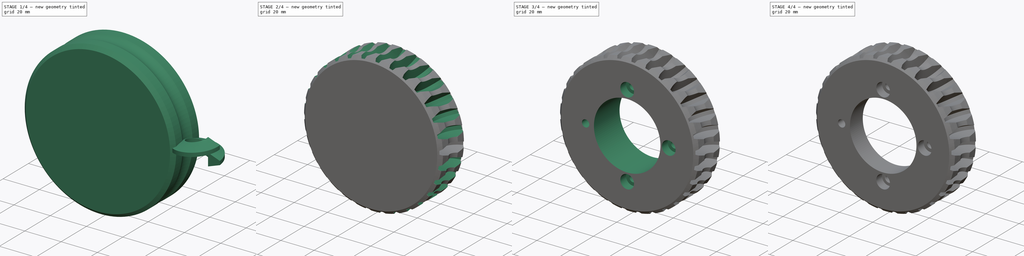
[diagram: build sequence overview — one tinted view per stage of 4, left to right]
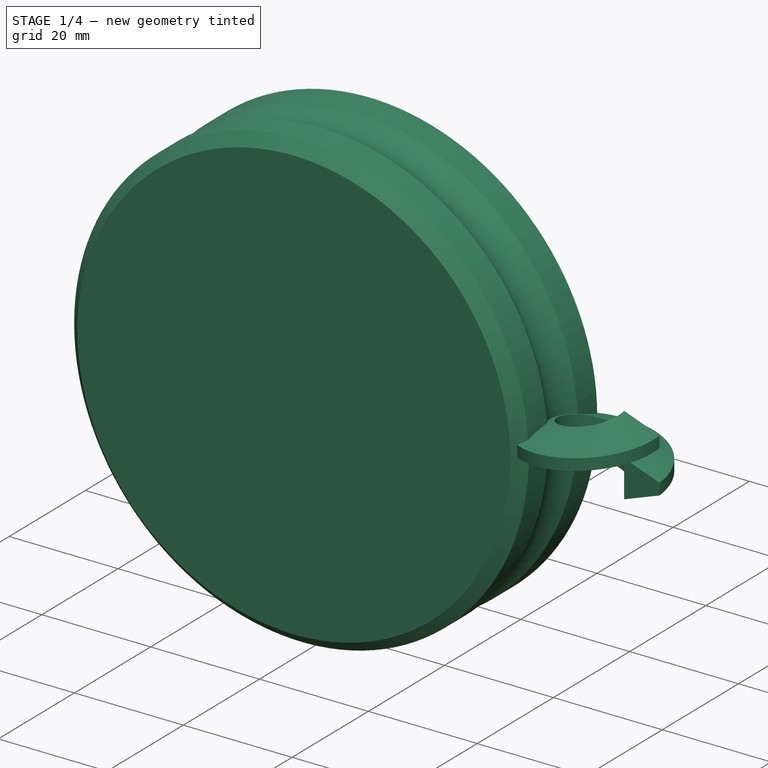
[diagram: stage 1 of 4 — iso view after this stage's code; geometry added in this stage tinted green]
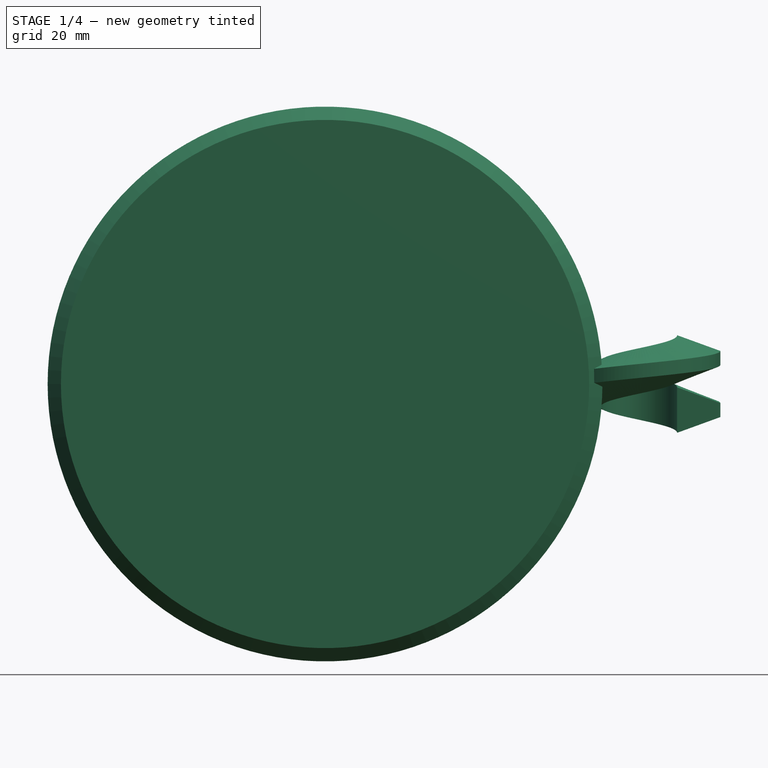
[diagram: stage 1 of 4 — front view after this stage's code; geometry added in this stage tinted green]
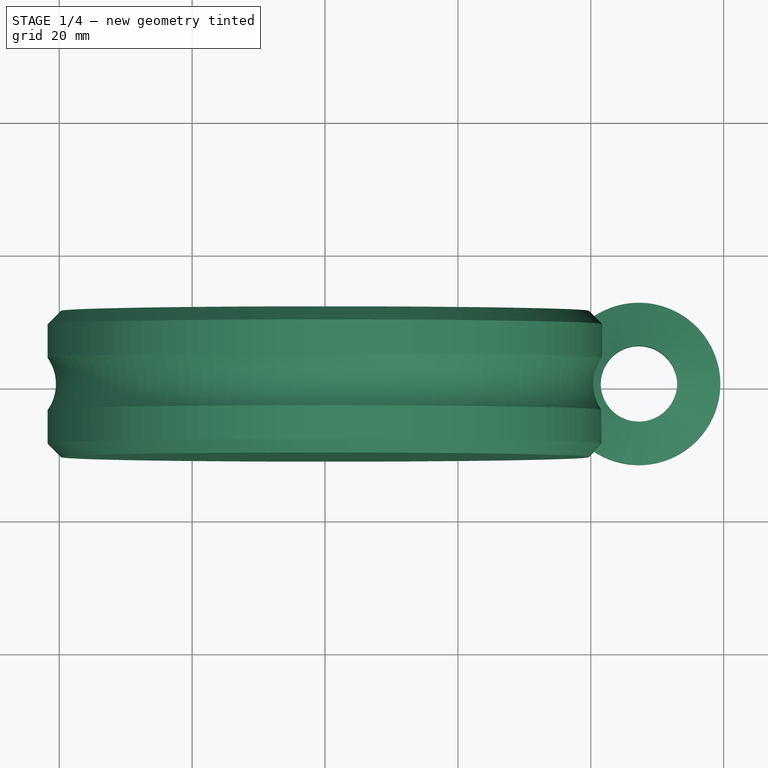
[diagram: stage 1 of 4 — top view after this stage's code; geometry added in this stage tinted green]
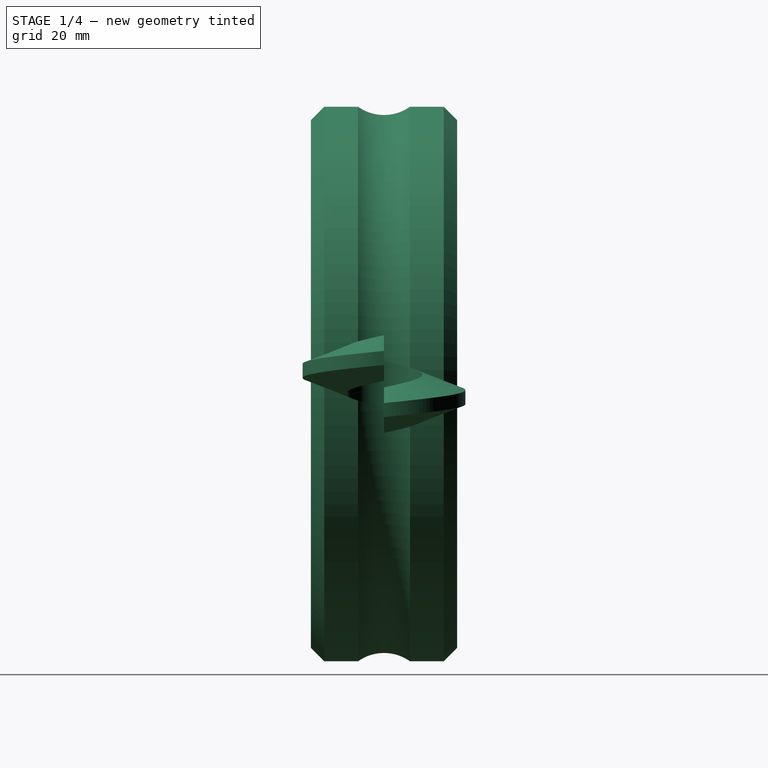
[diagram: stage 1 of 4 — right view after this stage's code; geometry added in this stage tinted green]
FCSTD DOCUMENT  (FreeCAD 0.17R5235 (Git shallow))
Label: C1020-1_shaft_gear
License: CC-BY 3.0
LicenseURL: http://creativecommons.org/licenses/by/3.0/
objects: Sketcher::SketchObject×7, PartDesign::Pocket×4, PartDesign::Chamfer×2, PartDesign::Body×2, PartDesign::Revolution×1, Part::Helix×1, Part::Sweep×1, Part::FeaturePython×1, Part::Cut×1, PartDesign::FeatureBase×1, PartDesign::Fillet×1, App::Part×1
note: 27 computed .brp shape members not serialized (recipe doc carries the construction recipe); baked Part::Feature solids carry a one-line shape summary decoded from their .brp

FEATURE [Sketcher::SketchObject] Sketch  label="coronaProfile"
  MapMode = 5
  Support = -> [XY_Plane001]
  sketch-geometry (6):
    g0: LineSegment StartX=0 StartY=-11 StartZ=0 EndX=41.75 EndY=-11 EndZ=0
    g1: LineSegment StartX=41.75 StartY=11 StartZ=0 EndX=0 EndY=11 EndZ=0
    g2: LineSegment StartX=0 StartY=11 StartZ=0 EndX=0 EndY=-11 EndZ=0
    g3: ArcOfCircle CenterX=47.25 CenterY=0 CenterZ=0 NormalX=0 NormalY=0 NormalZ=1 AngleXU=0 Radius=6.75 StartAngle=2.52321 EndAngle=3.75998
    g4: LineSegment StartX=41.75 StartY=11 StartZ=0 EndX=41.75 EndY=3.91312 EndZ=0
    g5: LineSegment StartX=41.75 StartY=-3.91312 StartZ=0 EndX=41.75 EndY=-11 EndZ=0
  constraints (18):
    c: Horizontal(g0)
    c: Horizontal(g1)
    c: Coincident(g2,g0)
    c: Vertical(g2)
    c: Symmetric(g1,g0,g-1)
    c: PointOnObject(g3,g-1)
    c: Coincident(g4,g1)
    c: Coincident(g4,g3)
    c: Vertical(g4)
    c: Coincident(g5,g3)
    c: Coincident(g5,g0)
    c: Vertical(g5)
    c: DistanceX(g-1,g3) = 47.25
    c: DistanceY(g1,g0) = -22
    c: DistanceX(g-1,g0) = 41.75
    c: Radius(g3) = 6.75
    c: PointOnObject(g2,g-2)
    c: Coincident(g2,g1)
FEATURE [PartDesign::Revolution] Revolution  label="CoronaBody"
  Angle = 360
  Axis = (0,1,0)
  Base = (0,0,0)
  Profile = -> Sketch
  ReferenceAxis = -> Sketch [V_Axis]
  Reversed = true
FEATURE [Part::Helix] Helix  label="coronaCircle"
  Angle = 0
  AttacherType = Attacher::AttachEngine3D
  Height = 7.85
  LocalCoord = 0
  Pitch = 7.85
  Placement = pos=(47.25,0,-3.925) rot=(0,0,1;0rad)
  Radius = 9.75
  Style = 1
FEATURE [Sketcher::SketchObject] Sketch002  label="helpCircle"
  MapMode = 5
  sketch-geometry (1):
    g0: Circle CenterX=47.25 CenterY=0 CenterZ=0 NormalX=0 NormalY=0 NormalZ=1 AngleXU=0 Radius=12.25
  constraints (3):
    c: PointOnObject(g0,g-1)
    c: Radius(g0) = 12.25
    c: DistanceX(g-1,g0) = 47.25
FEATURE [Sketcher::SketchObject] Sketch003  label="coronaCutter"
  MapMode = 5
  Placement = pos=(0,0,0) rot=(1,0,0;1.5708rad)
  sketch-geometry (6):
    g0: LineSegment StartX=53 StartY=-7.34338 StartZ=0 EndX=53 EndY=-0.506619 EndZ=0
    g1: LineSegment StartX=53 StartY=-0.506619 StartZ=0 EndX=59.5 EndY=-2.87243 EndZ=0
    g2: LineSegment StartX=59.5 StartY=-2.87243 StartZ=0 EndX=59.5 EndY=-4.97757 EndZ=0
    g3: LineSegment StartX=59.5 StartY=-4.97757 StartZ=0 EndX=53 EndY=-7.34338 EndZ=0
    g4: LineSegment [constr] StartX=53 StartY=-3.925 StartZ=0 EndX=59.5 EndY=-3.925 EndZ=0
    g5: LineSegment [constr] StartX=57 StartY=-1.9625 StartZ=0 EndX=57 EndY=-5.8875 EndZ=0
  constraints (19):
    c: Vertical(g0)
    c: Coincident(g0,g1)
    c: Coincident(g1,g2)
    c: Vertical(g2)
    c: Coincident(g2,g3)
    c: Coincident(g0,g3)
    c: PointOnObject(g4,g0)
    c: PointOnObject(g4,g2)
    c: Symmetric(g0,g0,g4)
    c: Symmetric(g1,g2,g4)
    c: Vertical(g5)
    c: PointOnObject(g5,g3)
    c: PointOnObject(g5,g1)
    c: DistanceX(g-1,g5) = 57
    c: DistanceY(g-1,g4) = -3.925
    c: Angle(g-1,g1) = 2.79253
    c: DistanceY(g5) = -3.925
    c: DistanceX(g5,g1) = 2.5
    c: DistanceX(g0,g5) = 4
FEATURE [Part::Sweep] Sweep  label="cutterSweep"
  Frenet = true
  Sections = -> [Sketch003]
  Solid = true
  Spine = -> Helix [Edge1]
  Transition = 1
FEATURE [PartDesign::Chamfer] Chamfer
  Base = -> Revolution [Edge1,Edge2]
  BaseFeature = -> Revolution
  Size = 2
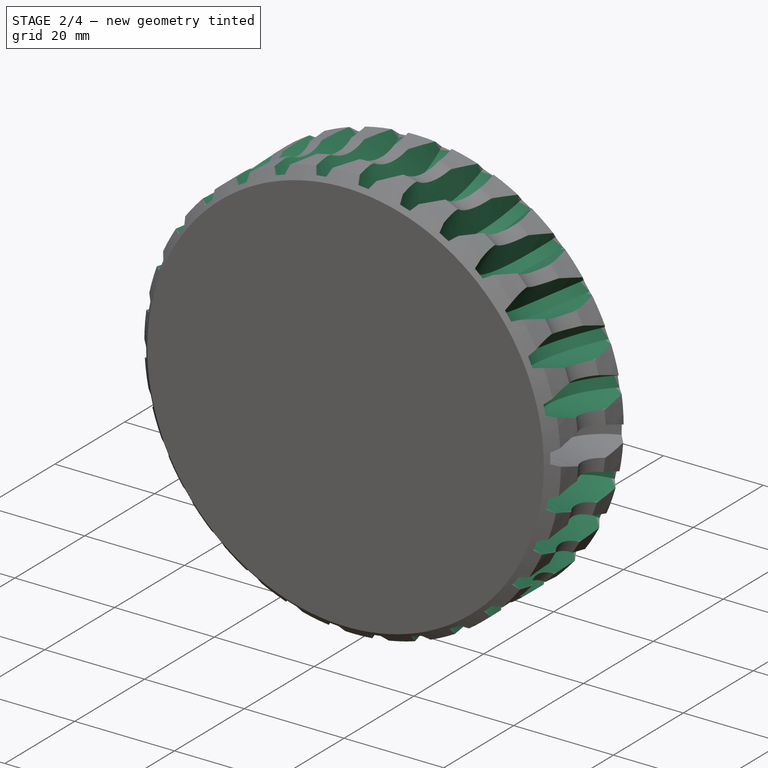
[diagram: stage 2 of 4 — iso view after this stage's code; geometry added in this stage tinted green]
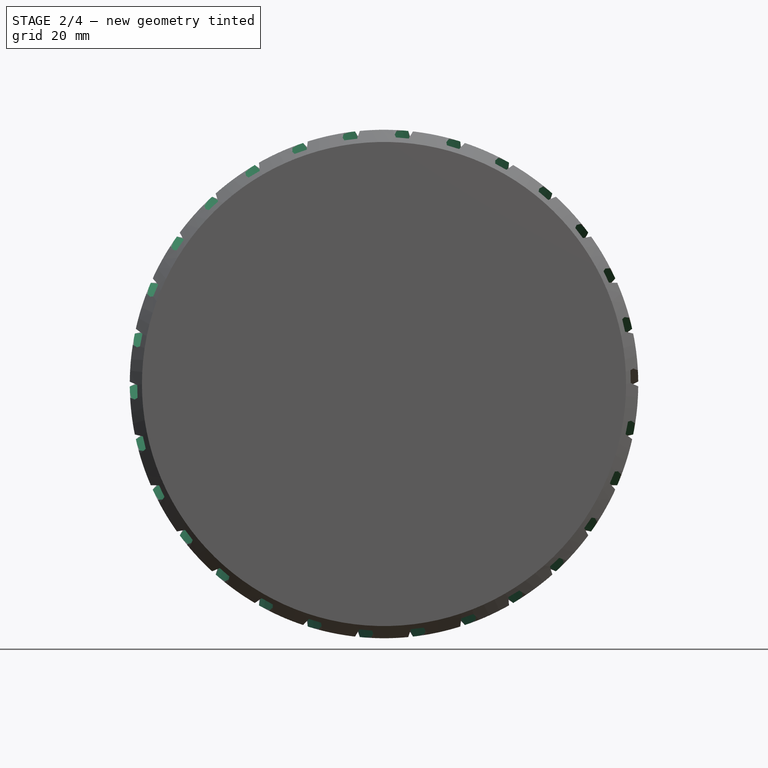
[diagram: stage 2 of 4 — front view after this stage's code; geometry added in this stage tinted green]
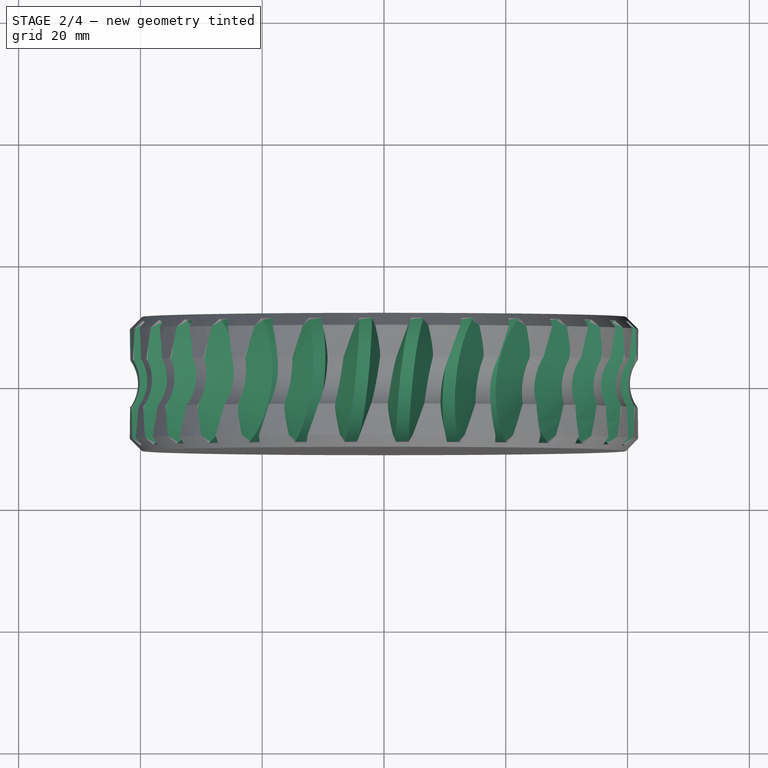
[diagram: stage 2 of 4 — top view after this stage's code; geometry added in this stage tinted green]
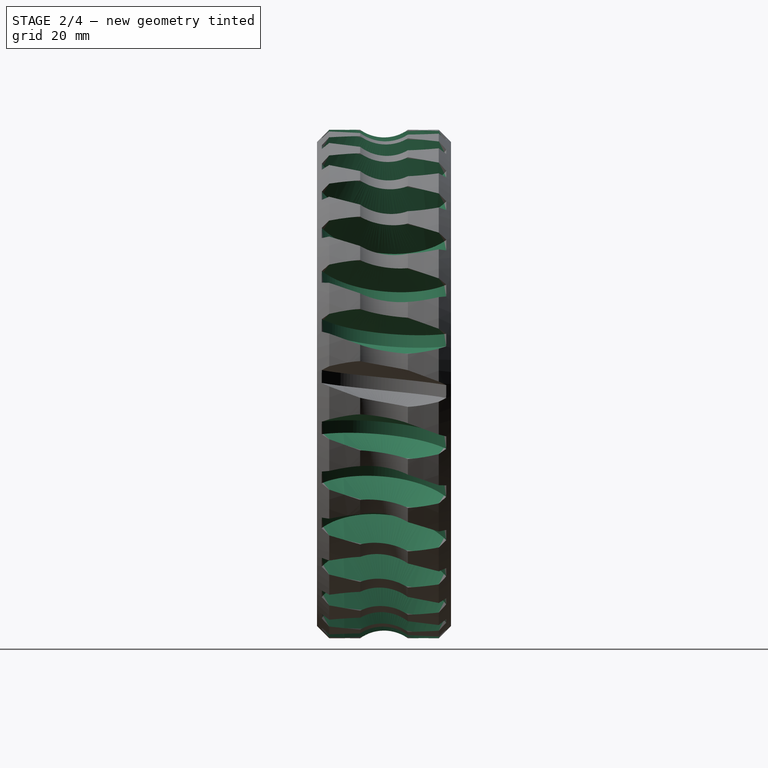
[diagram: stage 2 of 4 — right view after this stage's code; geometry added in this stage tinted green]
FEATURE [Part::FeaturePython] Array  label="cutterArray"  # Draft array (typed FeaturePython)
  Angle = 360
  ArrayType = 1
  Axis = (0,1,0)
  Base = -> Sweep
  Center = (0,0,0)
  IntervalX = (1,0,0)
  IntervalY = (0,1,0)
  IntervalZ = (0,0,1)
  NumberPolar = 30
  NumberX = 2
  NumberY = 2
  NumberZ = 1
FEATURE [PartDesign::Body] ChamferBody
  Group = -> [Sketch,Revolution,Chamfer]
  Origin = -> Origin001
  Tip = -> Chamfer
FEATURE [Part::Cut] Cut
  Base = -> ChamferBody
  Tool = -> Array
FEATURE [Sketcher::SketchObject] Sketch004  label="Sketch-axis-hole"
  MapMode = 5
  Placement = pos=(0,11,0) rot=(0,0.707107,0.707107;3.14159rad)
  Support = -> [Cut]
  sketch-geometry (1):
    g0: Circle CenterX=0 CenterY=0 CenterZ=0 NormalX=0 NormalY=0 NormalZ=1 AngleXU=0 Radius=20
  constraints (2):
    c: Coincident(g0,g-1)
    c: Radius(g0) = 20
FEATURE [PartDesign::FeatureBase] BaseFeature
  BaseFeature = -> Cut
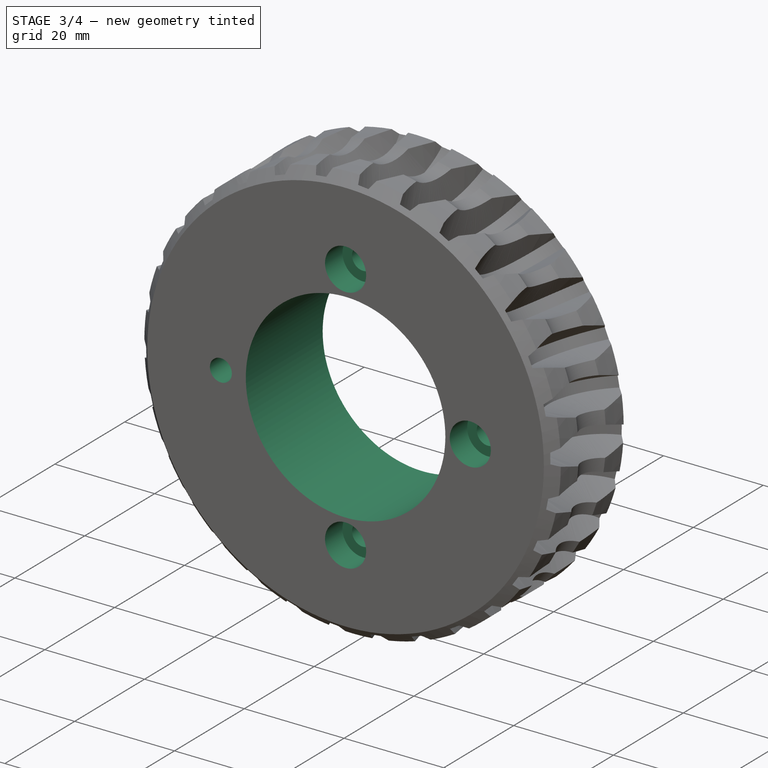
[diagram: stage 3 of 4 — iso view after this stage's code; geometry added in this stage tinted green]
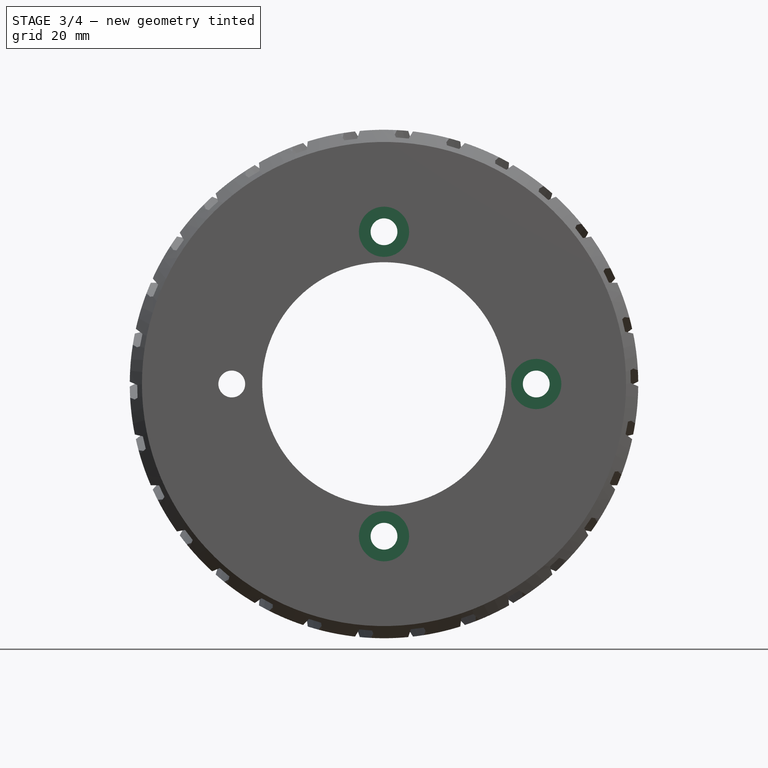
[diagram: stage 3 of 4 — front view after this stage's code; geometry added in this stage tinted green]
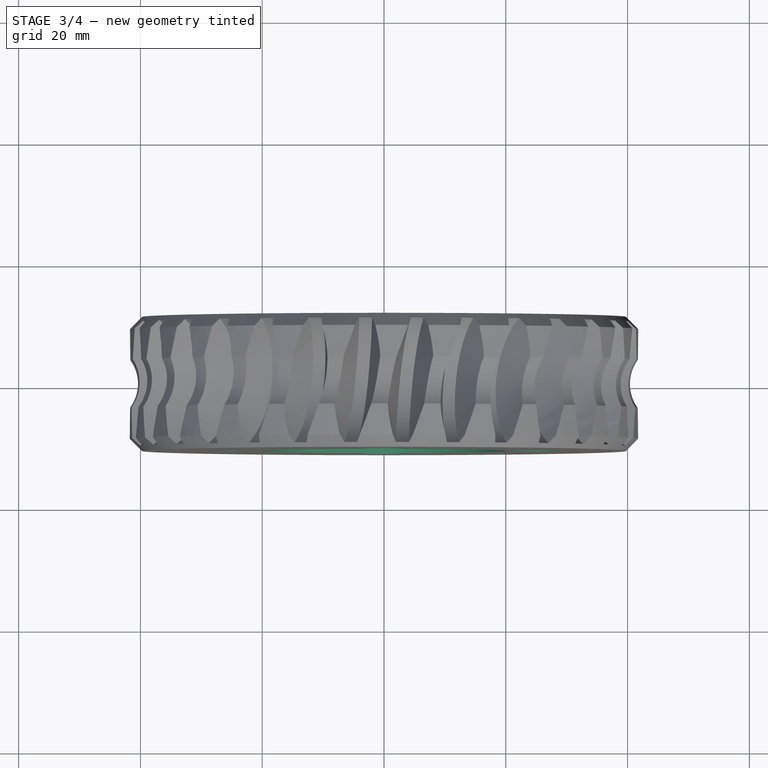
[diagram: stage 3 of 4 — top view after this stage's code; geometry added in this stage tinted green]
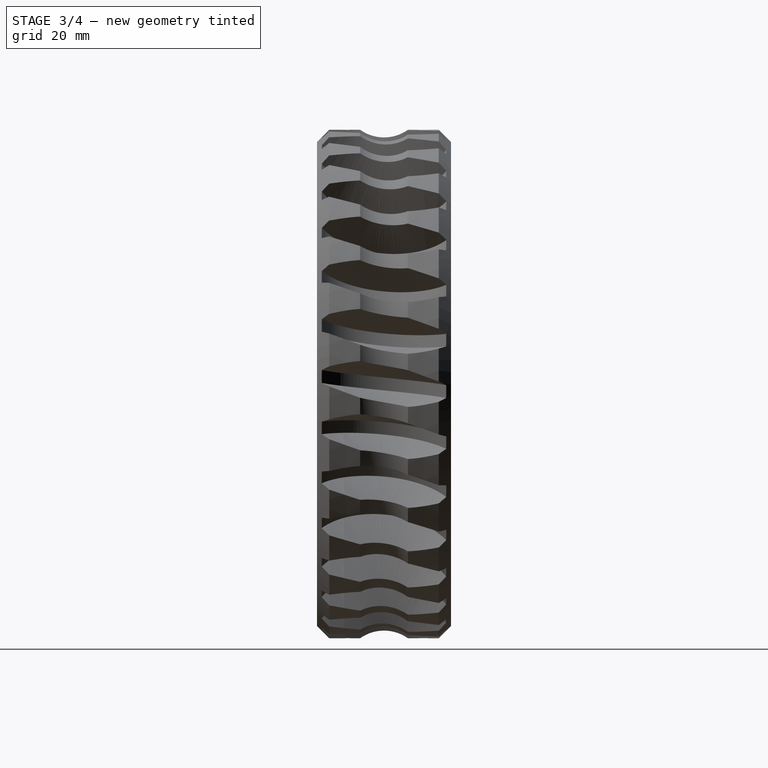
[diagram: stage 3 of 4 — right view after this stage's code; geometry added in this stage tinted green]
FEATURE [PartDesign::Pocket] Pocket  label="Pocket-axis-hole"
  BaseFeature = -> BaseFeature
  Length = 5
  Length2 = 100
  Profile = -> Sketch004
  Type = 1
FEATURE [Sketcher::SketchObject] Sketch005  label="Sketch-flange-holes"
  MapMode = 5
  Placement = pos=(0,11,0) rot=(0,0.707107,0.707107;3.14159rad)
  Support = -> [Pocket]
  sketch-geometry (5):
    g0: Circle CenterX=0 CenterY=25 CenterZ=0 NormalX=0 NormalY=0 NormalZ=1 AngleXU=0 Radius=2.2
    g1: Circle CenterX=25 CenterY=0 CenterZ=0 NormalX=0 NormalY=0 NormalZ=1 AngleXU=0 Radius=2.2
    g2: Circle CenterX=0 CenterY=-25 CenterZ=0 NormalX=0 NormalY=0 NormalZ=1 AngleXU=0 Radius=2.2
    g3: Circle CenterX=-25 CenterY=0 CenterZ=0 NormalX=0 NormalY=0 NormalZ=1 AngleXU=0 Radius=2.2
    g4: Circle [constr] CenterX=0 CenterY=0 CenterZ=0 NormalX=0 NormalY=0 NormalZ=1 AngleXU=0 Radius=25
  constraints (14):
    c: PointOnObject(g0,g-2)
    c: PointOnObject(g1,g-1)
    c: PointOnObject(g2,g-2)
    c: PointOnObject(g3,g-1)
    c: Equal(g3,g2)
    c: Equal(g2,g1)
    c: Equal(g1,g0)
    c: Radius(g1) = 2.2
    c: Coincident(g4,g-1)
    c: PointOnObject(g1,g4)
    c: PointOnObject(g0,g4)
    c: PointOnObject(g3,g4)
    c: PointOnObject(g2,g4)
    c: Radius(g4) = 25
FEATURE [PartDesign::Pocket] Pocket001  label="Pocket-flange-holes"
  BaseFeature = -> Pocket
  Length = 5
  Length2 = 100
  Profile = -> Sketch005
  Type = 1
FEATURE [Sketcher::SketchObject] Sketch006  label="Sketch-screw-head-pocket"
  ExternalGeometry = -> [Pocket001]
  MapMode = 5
  Placement = pos=(0,-11,0) rot=(1,0,0;1.5708rad)
  Support = -> [Pocket001]
  sketch-geometry (4):
    g0: Circle CenterX=-25 CenterY=0 CenterZ=0 NormalX=0 NormalY=0 NormalZ=1 AngleXU=0 Radius=4.12
    g1: Circle CenterX=0 CenterY=-25 CenterZ=0 NormalX=0 NormalY=0 NormalZ=1 AngleXU=0 Radius=4.12
    g2: Circle CenterX=0 CenterY=25 CenterZ=0 NormalX=0 NormalY=0 NormalZ=1 AngleXU=0 Radius=4.12
    g3: Circle CenterX=25 CenterY=0 CenterZ=0 NormalX=0 NormalY=0 NormalZ=1 AngleXU=0 Radius=4.12
  constraints (8):
    c: Coincident(g0,g-3)
    c: Coincident(g1,g-4)
    c: Coincident(g2,g-5)
    c: Coincident(g3,g-6)
    c: Equal(g3,g0)
    c: Equal(g0,g1)
    c: Equal(g1,g2)
    c: Radius(g1) = 4.12
FEATURE [PartDesign::Pocket] Pocket002  label="Pocket-screw-head-pocket"
  BaseFeature = -> Pocket001
  Length = 5
  Length2 = 100
  Profile = -> Sketch006
  Type = 0
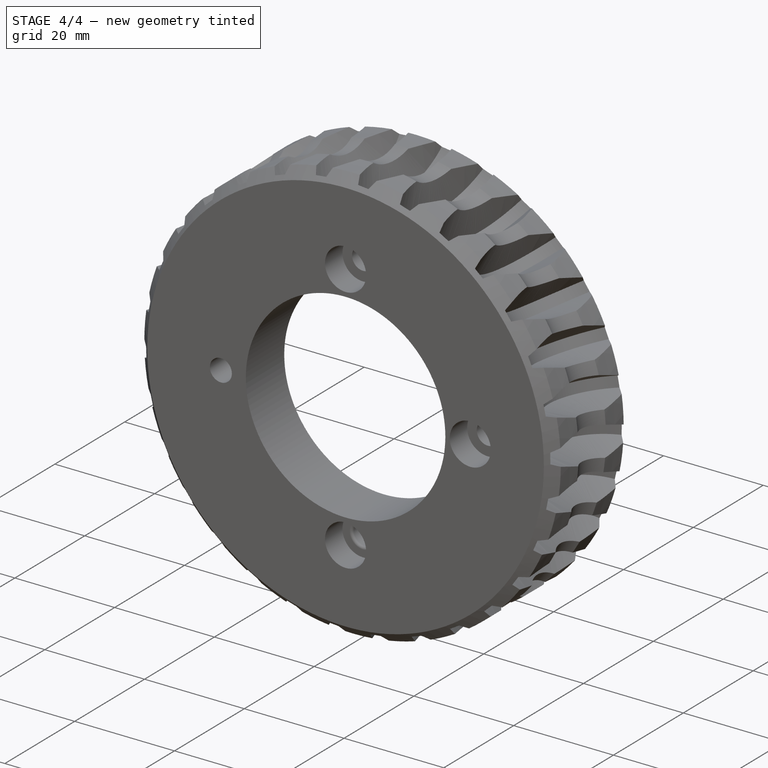
[diagram: stage 4 of 4 — iso view after this stage's code; geometry added in this stage tinted green]
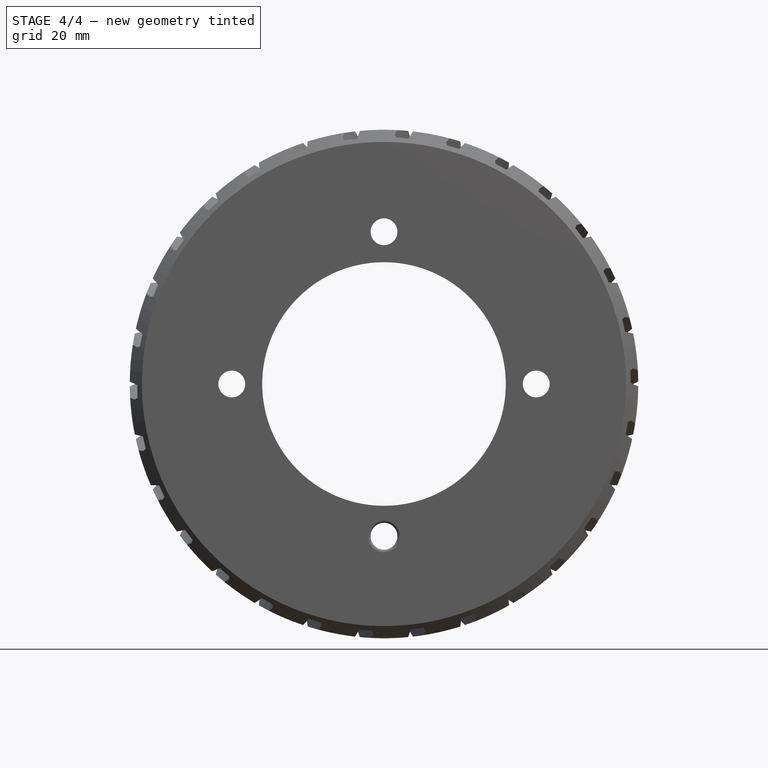
[diagram: stage 4 of 4 — front view after this stage's code; geometry added in this stage tinted green]
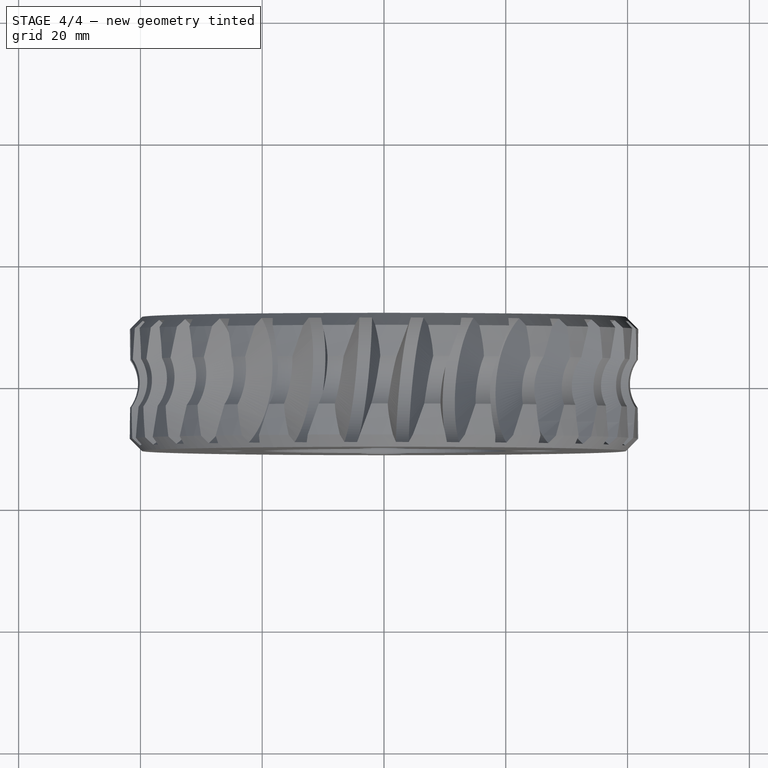
[diagram: stage 4 of 4 — top view after this stage's code; geometry added in this stage tinted green]
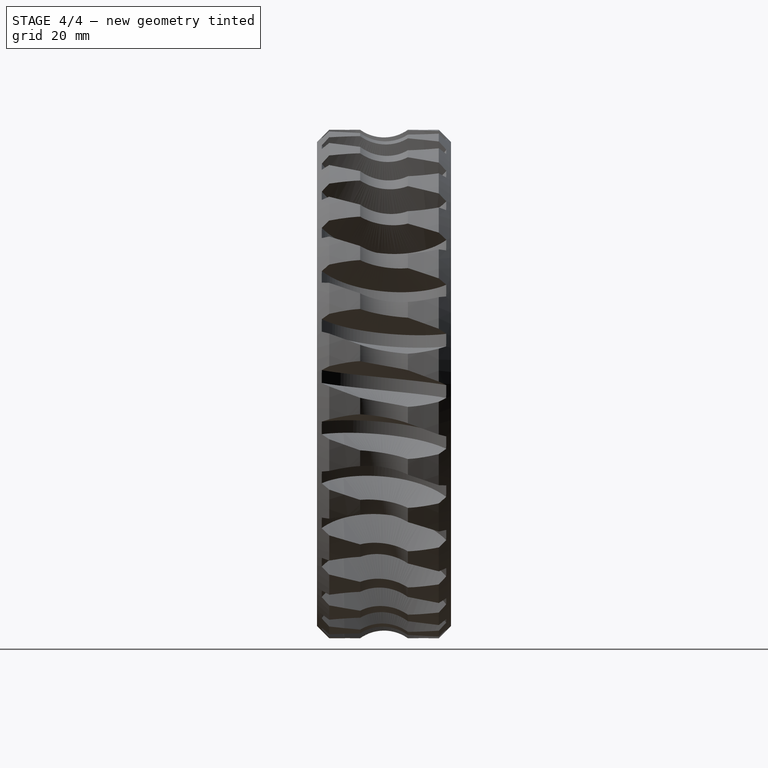
[diagram: stage 4 of 4 — right view after this stage's code; geometry added in this stage tinted green]
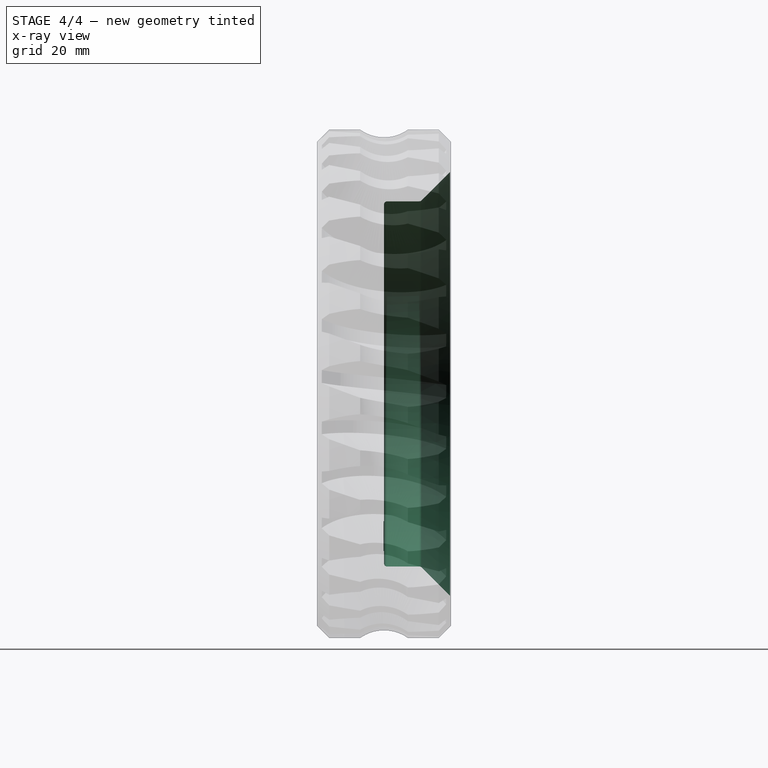
[diagram: stage 4 of 4 — x-ray composite at the right view; earlier geometry ghosted, this stage's added geometry solid]
FEATURE [Sketcher::SketchObject] Sketch007  label="Sketch-flange"
  MapMode = 5
  Placement = pos=(0,11,0) rot=(0,0.707107,0.707107;3.14159rad)
  Support = -> [Pocket002]
  sketch-geometry (2):
    g0: Circle CenterX=0 CenterY=0 CenterZ=0 NormalX=0 NormalY=0 NormalZ=1 AngleXU=0 Radius=30
    g1: Circle CenterX=0 CenterY=0 CenterZ=0 NormalX=0 NormalY=0 NormalZ=1 AngleXU=0 Radius=20
  constraints (4):
    c: Coincident(g0,g-1)
    c: Coincident(g1,g-1)
    c: Radius(g1) = 20
    c: Radius(g0) = 30
FEATURE [PartDesign::Pocket] Pocket003  label="Pocket-flange"
  BaseFeature = -> Pocket002
  Length = 11
  Length2 = 100
  Profile = -> Sketch007
  Type = 0
FEATURE [PartDesign::Chamfer] Chamfer001
  Base = -> Pocket003 [Edge2]
  BaseFeature = -> Pocket003
  Size = 5
FEATURE [PartDesign::Fillet] Fillet
  Base = -> Chamfer001 [Edge560,Edge491,Edge1,Edge4,Edge128]
  BaseFeature = -> Chamfer001
  Radius = 0.5
FEATURE [PartDesign::Body] FilletBody
  BaseFeature = -> Cut
  Group = -> [BaseFeature,Sketch004,Pocket,Sketch005,Pocket001,Sketch006,Pocket002,Sketch007,Pocket003,Chamfer001,Fillet]
  Origin = -> Origin002
  Tip = -> Fillet
FEATURE [App::Part] Part
  Group = -> [ChamferBody,FilletBody]
  License = CC BY 3.0
  LicenseURL = http://creativecommons.org/licenses/by/3.0/
  Origin = -> Origin
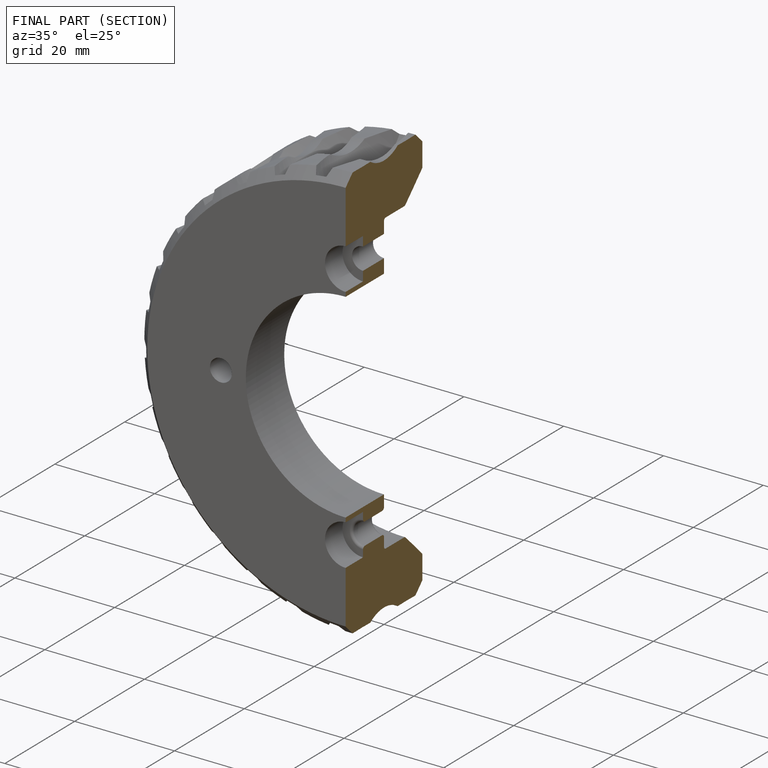
[diagram: finished part — half-section view (interior)]
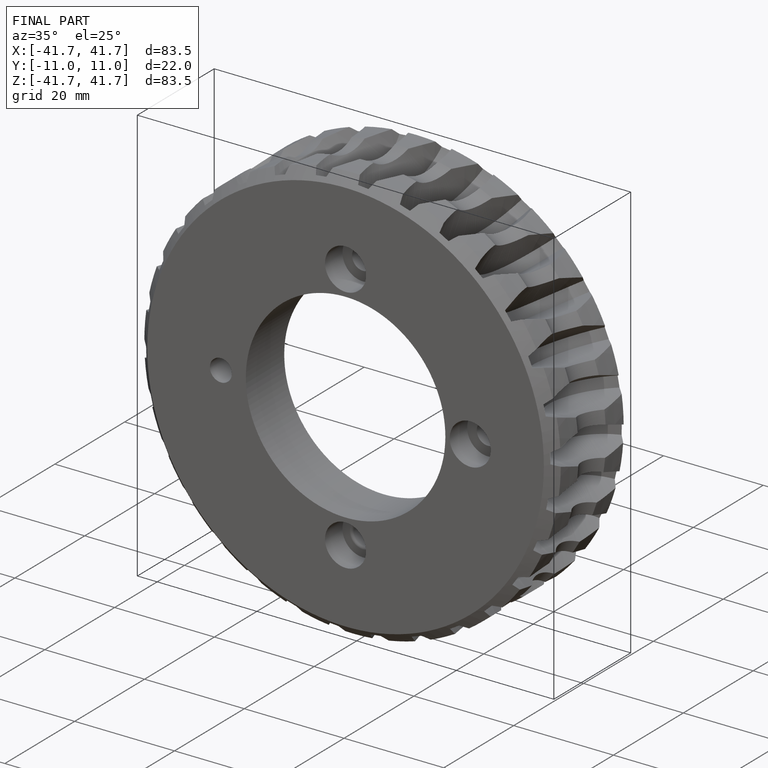
[diagram: finished part — iso view with bounding-box wireframe]
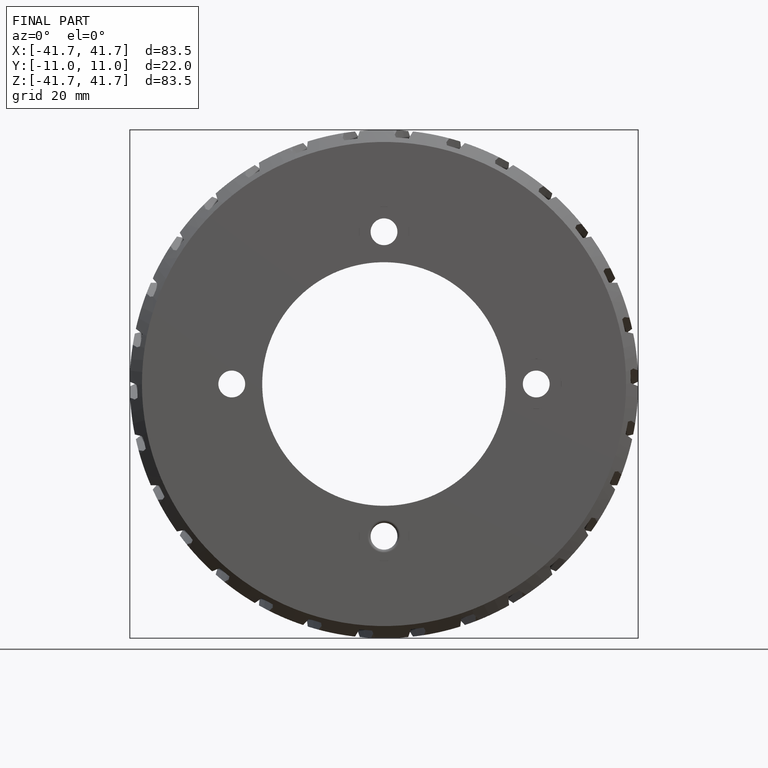
[diagram: finished part — front view with bounding-box wireframe]
